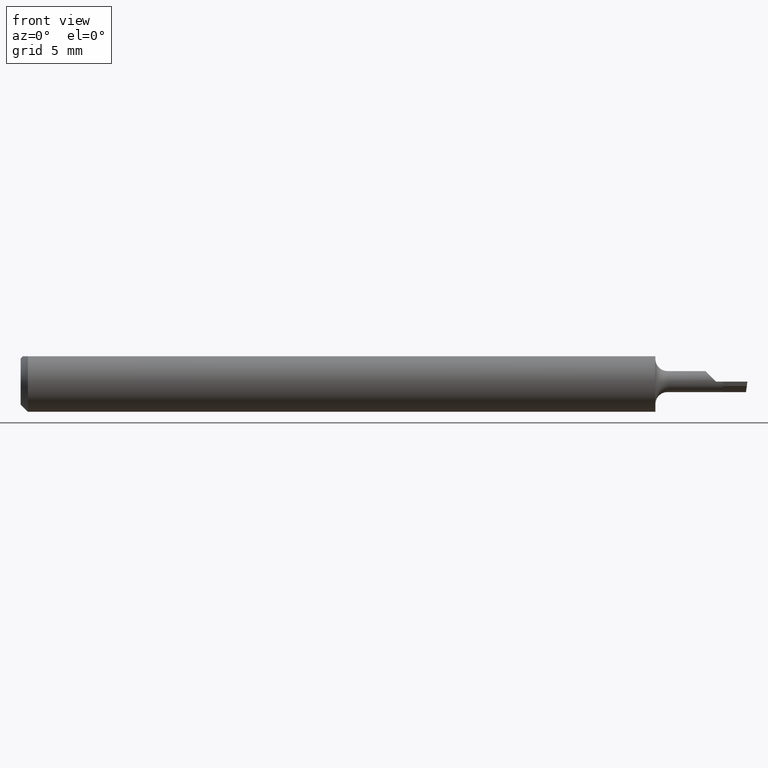
[diagram: clean part render]
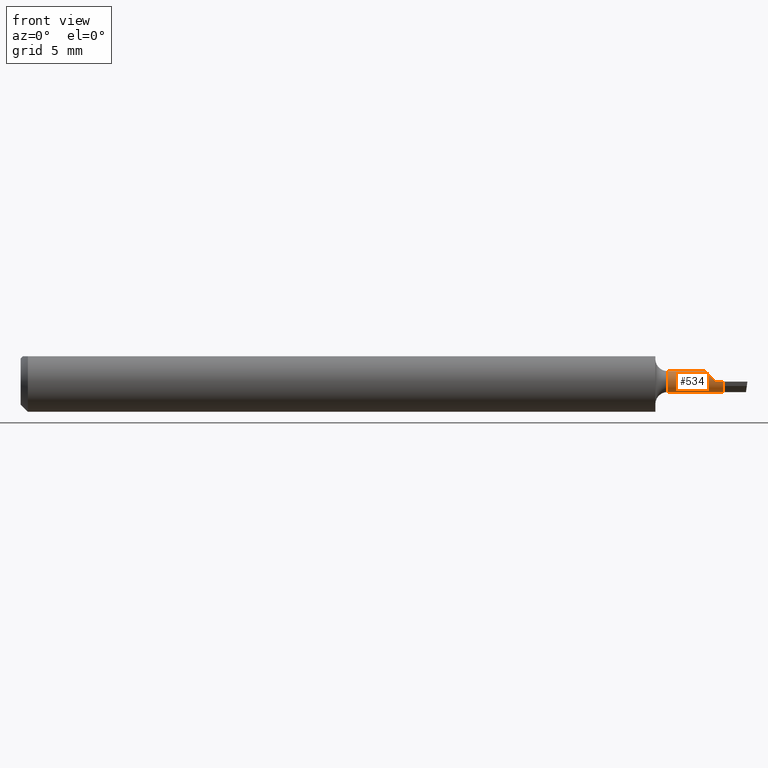
[diagram: same view with one face highlighted and labeled with its STEP entity id]
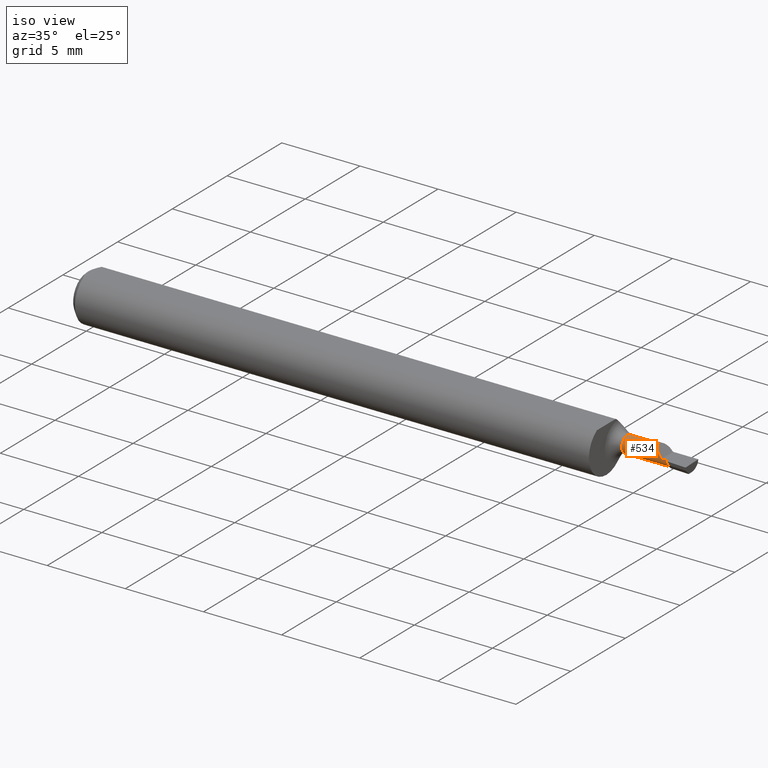
[diagram: same view with one face highlighted and labeled with its STEP entity id]
A machine part, front view. The second image highlights one B-rep face of the part: STEP entity #534.
A second angle (iso view) of the same face is appended — the face is thin or edge-on in the first view.
In plain terms, the highlighted cylindrical surface (edge-blend (fillet) strip) has radius 0.5499 mm, axis along (-1, -0, -0).
Its self-contained STEP definition (entity closure, byte-faithful):
#7 = ORIENTED_EDGE ( 'NONE', *, *, #143, .T. ) ;
#35 = EDGE_CURVE ( 'NONE', #374, #632, #127, .T. ) ;
#43 = CARTESIAN_POINT ( 'NONE',  ( 1.413349999999999662, 0.02931772362537750365, 0.02165000000000001992 ) ) ;
#61 = CARTESIAN_POINT ( 'NONE',  ( 1.450000000000000178, 0.02034999999999999656, 1.723822351771319809E-16 ) ) ;
#65 = VECTOR ( 'NONE', #384, 39.37007874015748143 ) ;
#71 = CARTESIAN_POINT ( 'NONE',  ( 1.435000000000000053, 0.02034999999999996187, 7.469896857675718968E-18 ) ) ;
#78 = AXIS2_PLACEMENT_3D ( 'NONE', #618, #667, #448 ) ;
#82 = CARTESIAN_POINT ( 'NONE',  ( 1.413349999999999884, 0.04200000000000000955, 0.02165000000000001992 ) ) ;
#90 = CARTESIAN_POINT ( 'NONE',  ( 0.000000000000000000, 0.04200000000000000955, 0.000000000000000000 ) ) ;
#93 = EDGE_CURVE ( 'NONE', #159, #548, #514, .T. ) ;
#127 = LINE ( 'NONE', #340, #582 ) ;
#141 = CARTESIAN_POINT ( 'NONE',  ( 1.413349999999999884, 0.04200000000000000955, 0.02165000000000001992 ) ) ;
#143 = EDGE_CURVE ( 'NONE', #374, #589, #439, .T. ) ;
#148 = CARTESIAN_POINT ( 'NONE',  ( 1.334999999999999742, 0.04200000000000000955, 0.02165000000000002339 ) ) ;
#151 = EDGE_CURVE ( 'NONE', #632, #682, #399, .T. ) ;
#154 = AXIS2_PLACEMENT_3D ( 'NONE', #90, #352, #305 ) ;
#159 = VERTEX_POINT ( 'NONE', #82 ) ;
#175 = CARTESIAN_POINT ( 'NONE',  ( 0.000000000000000000, 0.04200000000000000955, 0.02165000000000001992 ) ) ;
#193 = DIRECTION ( 'NONE',  ( -1.000000000000000000, -0.000000000000000000, -0.000000000000000000 ) ) ;
#195 = FACE_OUTER_BOUND ( 'NONE', #469, .T. ) ;
#196 = CARTESIAN_POINT ( 'NONE',  ( 1.435000000000000053, 0.02034999999999996187, 7.469896857675718968E-18 ) ) ;
#210 = VECTOR ( 'NONE', #442, 39.37007874015748143 ) ;
#218 = ORIENTED_EDGE ( 'NONE', *, *, #35, .F. ) ;
#234 = DIRECTION ( 'NONE',  ( -1.000000000000000000, -0.000000000000000000, -0.000000000000000000 ) ) ;
#235 = CARTESIAN_POINT ( 'NONE',  ( 1.981042333644269815E-32, 0.02034999999999999309, 1.723822351771319809E-16 ) ) ;
#239 = LINE ( 'NONE', #235, #210 ) ;
#290 = AXIS2_PLACEMENT_3D ( 'NONE', #459, #193, #463 ) ;
#291 = CARTESIAN_POINT ( 'NONE',  ( 1.334999999999999742, 0.04200000000000000955, -0.02165000000000002339 ) ) ;
#305 = DIRECTION ( 'NONE',  ( 0.000000000000000000, 0.000000000000000000, 1.000000000000000000 ) ) ;
#340 = CARTESIAN_POINT ( 'NONE',  ( 0.000000000000000000, 0.04200000000000000955, -0.02165000000000001992 ) ) ;
#347 = EDGE_CURVE ( 'NONE', #159, #682, #646, .T. ) ;
#352 = DIRECTION ( 'NONE',  ( -1.000000000000000000, -0.000000000000000000, -0.000000000000000000 ) ) ;
#356 = CARTESIAN_POINT ( 'NONE',  ( 1.422317723625377450, 0.02034999999999998616, 0.01268227637462250243 ) ) ;
#361 = CARTESIAN_POINT ( 'NONE',  ( 1.450000000000000178, 0.04200000000000000955, -0.02165000000000000951 ) ) ;
#374 = VERTEX_POINT ( 'NONE', #361 ) ;
#384 = DIRECTION ( 'NONE',  ( -1.000000000000000000, -0.000000000000000000, -0.000000000000000000 ) ) ;
#399 = CIRCLE ( 'NONE', #78, 0.02165000000000002339 ) ;
#405 = CYLINDRICAL_SURFACE ( 'NONE', #154, 0.02165000000000001992 ) ;
#431 = EDGE_CURVE ( 'NONE', #548, #589, #239, .T. ) ;
#439 = CIRCLE ( 'NONE', #290, 0.02165000000000000951 ) ;
#442 = DIRECTION ( 'NONE',  ( 1.000000000000000000, 0.000000000000000000, 0.000000000000000000 ) ) ;
#448 = DIRECTION ( 'NONE',  ( 0.000000000000000000, 0.000000000000000000, 1.000000000000000000 ) ) ;
#459 = CARTESIAN_POINT ( 'NONE',  ( 1.450000000000000178, 0.04200000000000000955, 0.000000000000000000 ) ) ;
#463 = DIRECTION ( 'NONE',  ( 0.000000000000000000, 0.000000000000000000, 1.000000000000000000 ) ) ;
#469 = EDGE_LOOP ( 'NONE', ( #218, #7, #495, #636, #567, #521 ) ) ;
#495 = ORIENTED_EDGE ( 'NONE', *, *, #431, .F. ) ;
#514 =( BOUNDED_CURVE ( )  B_SPLINE_CURVE ( 3, ( #141, #43, #356, #196 ),
 .UNSPECIFIED., .F., .T. ) 
 B_SPLINE_CURVE_WITH_KNOTS ( ( 4, 4 ),
 ( 0.000000000000000000, 1.570796326794896780 ),
 .UNSPECIFIED. ) 
 CURVE ( )  GEOMETRIC_REPRESENTATION_ITEM ( )  RATIONAL_B_SPLINE_CURVE ( ( 1.000000000000000000, 0.8047378541243649375, 0.8047378541243649375, 1.000000000000000000 ) ) 
 REPRESENTATION_ITEM ( '' )  );
#521 = ORIENTED_EDGE ( 'NONE', *, *, #151, .F. ) ;
#534 = ADVANCED_FACE ( 'NONE', ( #195 ), #405, .T. ) ;
#548 = VERTEX_POINT ( 'NONE', #71 ) ;
#567 = ORIENTED_EDGE ( 'NONE', *, *, #347, .T. ) ;
#582 = VECTOR ( 'NONE', #234, 39.37007874015748143 ) ;
#589 = VERTEX_POINT ( 'NONE', #61 ) ;
#618 = CARTESIAN_POINT ( 'NONE',  ( 1.334999999999999742, 0.04200000000000000955, 0.000000000000000000 ) ) ;
#632 = VERTEX_POINT ( 'NONE', #291 ) ;
#636 = ORIENTED_EDGE ( 'NONE', *, *, #93, .F. ) ;
#646 = LINE ( 'NONE', #175, #65 ) ;
#667 = DIRECTION ( 'NONE',  ( -1.000000000000000000, -0.000000000000000000, -0.000000000000000000 ) ) ;
#682 = VERTEX_POINT ( 'NONE', #148 ) ;